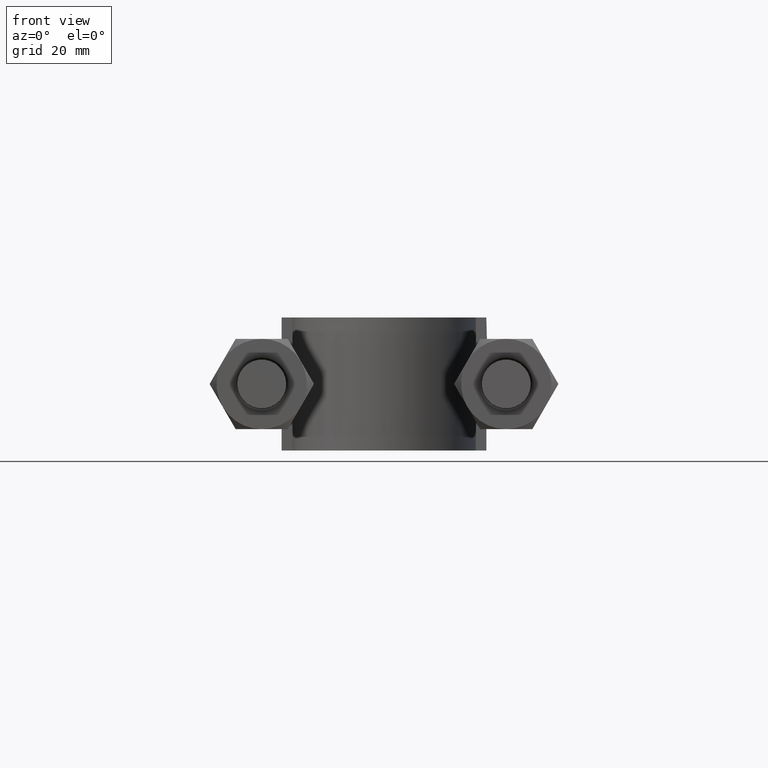
[diagram: clean part render]
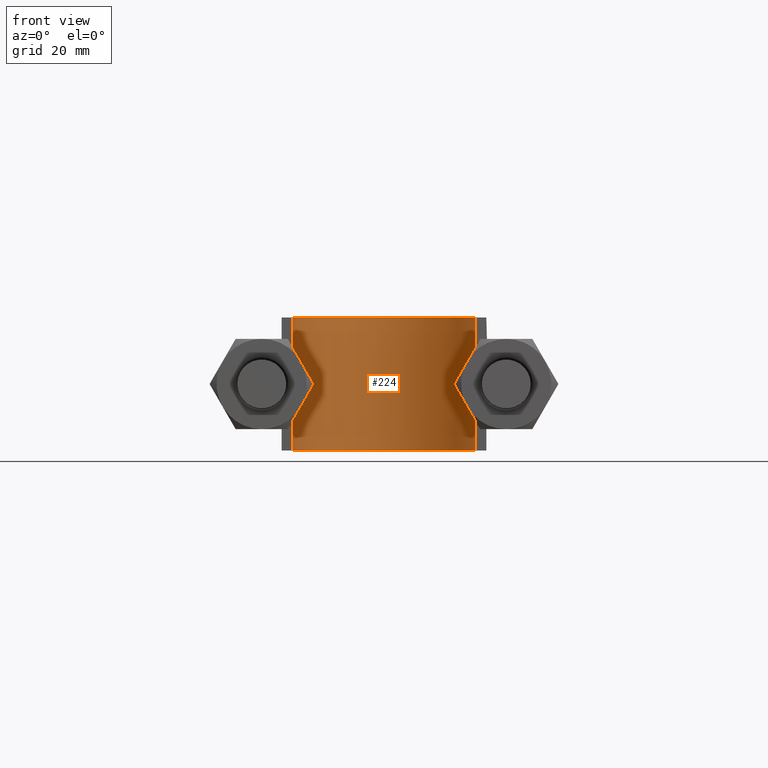
[diagram: same view with one face highlighted and labeled with its STEP entity id]
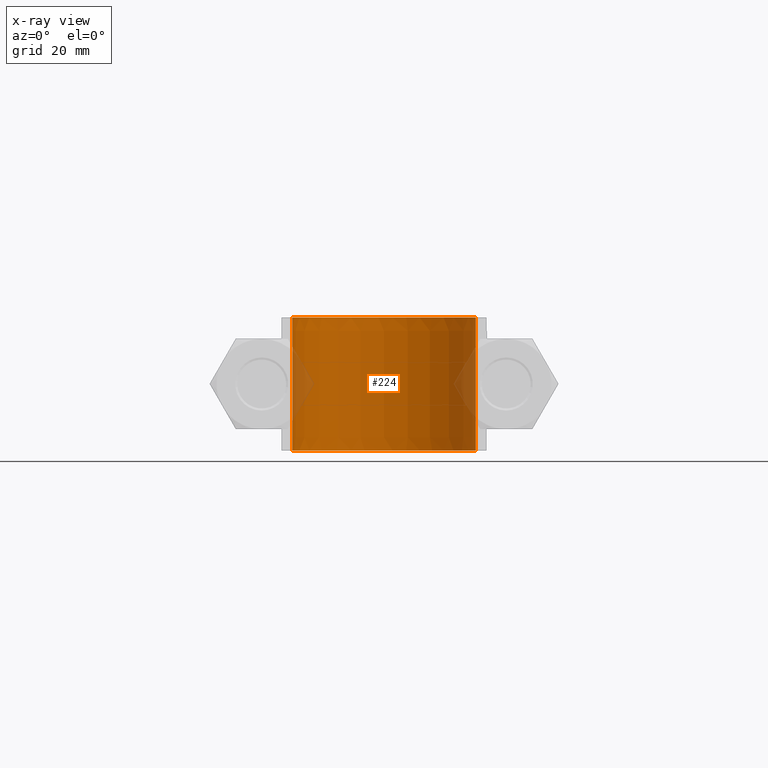
[diagram: x-ray of the same camera — body ghosted, the highlighted face saturated]
A machine part, front view. The second image highlights one B-rep face of the part: STEP entity #224.
The next image is the same camera in x-ray: the body ghosted, the highlighted face saturated — about 7% of this face is hidden behind the body in this view.
In plain terms, the highlighted face is a SurfaceOfExtrusion surface.
Its self-contained STEP definition (entity closure, byte-faithful):
#224 = ADVANCED_FACE( '', ( #308 ), #309, .T. );
#308 = FACE_OUTER_BOUND( '', #1006, .T. );
#309 = SURFACE_OF_LINEAR_EXTRUSION( '', #1007, #1008 );
#1006 = EDGE_LOOP( '', ( #1499, #1500, #1501, #1502 ) );
#1007 = B_SPLINE_CURVE_WITH_KNOTS( '', 3, ( #1503, #1504, #1505, #1506, #1507, #1508, #1509, #1510, #1511, #1512, #1513, #1514, #1515, #1516, #1517, #1518, #1519 ), .UNSPECIFIED., .F., .F., ( 4, 3, 1, 1, 1, 1, 1, 1, 1, 3, 4 ), ( 0.138743455497382, 1.00000000000000, 1.50000000000000, 2.00000000000000, 3.00000000000000, 4.00000000000000, 5.00000000000000, 6.00000000000000, 6.50000000000000, 7.00000000000000, 7.86125654450262 ), .UNSPECIFIED. );
#1008 = VECTOR( '', #1520, 1000.00000000000 );
#1499 = ORIENTED_EDGE( '', *, *, #2008, .F. );
#1500 = ORIENTED_EDGE( '', *, *, #2003, .F. );
#1501 = ORIENTED_EDGE( '', *, *, #2015, .T. );
#1502 = ORIENTED_EDGE( '', *, *, #2011, .T. );
#1503 = CARTESIAN_POINT( '', ( -17.2500000000000, 73.3000000000000, -69.9996733561149 ) );
#1504 = CARTESIAN_POINT( '', ( -17.2500000000000, 78.7833333333333, -69.9996733561149 ) );
#1505 = CARTESIAN_POINT( '', ( -17.2500000000000, 84.2666666666667, -69.9996733561149 ) );
#1506 = CARTESIAN_POINT( '', ( -17.2500000000000, 89.7500000000000, -69.9996733561149 ) );
#1507 = CARTESIAN_POINT( '', ( -17.2500000000000, 91.2426934616576, -69.9996733561149 ) );
#1508 = CARTESIAN_POINT( '', ( -16.8447140772576, 94.2689573264767, -69.9996733561149 ) );
#1509 = CARTESIAN_POINT( '', ( -14.5369669940350, 99.8768798182963, -69.9996733561149 ) );
#1510 = CARTESIAN_POINT( '', ( -9.02779989662052, 105.388295002950, -69.9996733561149 ) );
#1511 = CARTESIAN_POINT( '', ( 1.32019731948932E-014, 107.805852498525, -69.9996733561149 ) );
#1512 = CARTESIAN_POINT( '', ( 9.02779989662054, 105.388295002950, -69.9996733561149 ) );
#1513 = CARTESIAN_POINT( '', ( 14.5369669940350, 99.8768798182963, -69.9996733561149 ) );
#1514 = CARTESIAN_POINT( '', ( 16.8447140772576, 94.2689573264767, -69.9996733561149 ) );
#1515 = CARTESIAN_POINT( '', ( 17.2500000000000, 91.2426934616576, -69.9996733561149 ) );
#1516 = CARTESIAN_POINT( '', ( 17.2500000000000, 89.7500000000000, -69.9996733561149 ) );
#1517 = CARTESIAN_POINT( '', ( 17.2500000000000, 84.2666666666667, -69.9996733561149 ) );
#1518 = CARTESIAN_POINT( '', ( 17.2500000000000, 78.7833333333333, -69.9996733561149 ) );
#1519 = CARTESIAN_POINT( '', ( 17.2500000000000, 73.3000000000000, -69.9996733561149 ) );
#1520 = DIRECTION( '', ( 0.000000000000000, 0.000000000000000, 1.00000000000000 ) );
#2003 = EDGE_CURVE( '', #2155, #2156, #2157, .T. );
#2008 = EDGE_CURVE( '', #2156, #2165, #2166, .T. );
#2011 = EDGE_CURVE( '', #2170, #2165, #2171, .T. );
#2015 = EDGE_CURVE( '', #2155, #2170, #2177, .T. );
#2155 = VERTEX_POINT( '', #2405 );
#2156 = VERTEX_POINT( '', #2406 );
#2157 = LINE( '', #2407, #2408 );
#2165 = VERTEX_POINT( '', #2457 );
#2166 = B_SPLINE_CURVE_WITH_KNOTS( '', 3, ( #2458, #2459, #2460, #2461, #2462, #2463, #2464, #2465, #2466, #2467, #2468, #2469, #2470, #2471, #2472, #2473, #2474 ), .UNSPECIFIED., .F., .F., ( 4, 3, 1, 1, 1, 1, 1, 1, 1, 3, 4 ), ( 0.138743455497382, 1.00000000000000, 1.50000000000000, 2.00000000000000, 3.00000000000000, 4.00000000000000, 5.00000000000000, 6.00000000000000, 6.50000000000000, 7.00000000000000, 7.86125654450262 ), .UNSPECIFIED. );
#2170 = VERTEX_POINT( '', #2495 );
#2171 = LINE( '', #2496, #2497 );
#2177 = B_SPLINE_CURVE_WITH_KNOTS( '', 3, ( #2543, #2544, #2545, #2546, #2547, #2548, #2549, #2550, #2551, #2552, #2553, #2554, #2555, #2556, #2557, #2558, #2559 ), .UNSPECIFIED., .F., .F., ( 4, 3, 1, 1, 1, 1, 1, 1, 1, 3, 4 ), ( 0.138743455497382, 1.00000000000000, 1.50000000000000, 2.00000000000000, 3.00000000000000, 4.00000000000000, 5.00000000000000, 6.00000000000000, 6.50000000000000, 7.00000000000000, 7.86125654450262 ), .UNSPECIFIED. );
#2405 = CARTESIAN_POINT( '', ( -17.2500000000000, 73.3000000000000, -12.5000000000000 ) );
#2406 = CARTESIAN_POINT( '', ( -17.2500000000000, 73.3000000000000, 12.5000000000000 ) );
#2407 = CARTESIAN_POINT( '', ( -17.2500000000000, 73.3000000000000, -69.9996733561149 ) );
#2408 = VECTOR( '', #3001, 1000.00000000000 );
#2457 = CARTESIAN_POINT( '', ( 17.2500000000000, 73.3000000000000, 12.5000000000000 ) );
#2458 = CARTESIAN_POINT( '', ( -17.2500000000000, 73.3000000000000, 12.5000000000000 ) );
#2459 = CARTESIAN_POINT( '', ( -17.2500000000000, 78.7833333333333, 12.5000000000000 ) );
#2460 = CARTESIAN_POINT( '', ( -17.2500000000000, 84.2666666666667, 12.5000000000000 ) );
#2461 = CARTESIAN_POINT( '', ( -17.2500000000000, 89.7500000000000, 12.5000000000000 ) );
#2462 = CARTESIAN_POINT( '', ( -17.2500000000000, 91.2426934616576, 12.5000000000000 ) );
#2463 = CARTESIAN_POINT( '', ( -16.8447140772576, 94.2689573264767, 12.5000000000000 ) );
#2464 = CARTESIAN_POINT( '', ( -14.5369669940350, 99.8768798182963, 12.5000000000000 ) );
#2465 = CARTESIAN_POINT( '', ( -9.02779989662052, 105.388295002950, 12.5000000000000 ) );
#2466 = CARTESIAN_POINT( '', ( 1.32019731948932E-014, 107.805852498525, 12.5000000000000 ) );
#2467 = CARTESIAN_POINT( '', ( 9.02779989662054, 105.388295002950, 12.5000000000000 ) );
#2468 = CARTESIAN_POINT( '', ( 14.5369669940350, 99.8768798182963, 12.5000000000000 ) );
#2469 = CARTESIAN_POINT( '', ( 16.8447140772576, 94.2689573264767, 12.5000000000000 ) );
#2470 = CARTESIAN_POINT( '', ( 17.2500000000000, 91.2426934616576, 12.5000000000000 ) );
#2471 = CARTESIAN_POINT( '', ( 17.2500000000000, 89.7500000000000, 12.5000000000000 ) );
#2472 = CARTESIAN_POINT( '', ( 17.2500000000000, 84.2666666666667, 12.5000000000000 ) );
#2473 = CARTESIAN_POINT( '', ( 17.2500000000000, 78.7833333333333, 12.5000000000000 ) );
#2474 = CARTESIAN_POINT( '', ( 17.2500000000000, 73.3000000000000, 12.5000000000000 ) );
#2495 = CARTESIAN_POINT( '', ( 17.2500000000000, 73.3000000000000, -12.5000000000000 ) );
#2496 = CARTESIAN_POINT( '', ( 17.2500000000000, 73.3000000000000, -69.9996733561149 ) );
#2497 = VECTOR( '', #3005, 1000.00000000000 );
#2543 = CARTESIAN_POINT( '', ( -17.2500000000000, 73.3000000000000, -12.5000000000000 ) );
#2544 = CARTESIAN_POINT( '', ( -17.2500000000000, 78.7833333333333, -12.5000000000000 ) );
#2545 = CARTESIAN_POINT( '', ( -17.2500000000000, 84.2666666666667, -12.5000000000000 ) );
#2546 = CARTESIAN_POINT( '', ( -17.2500000000000, 89.7500000000000, -12.5000000000000 ) );
#2547 = CARTESIAN_POINT( '', ( -17.2500000000000, 91.2426934616576, -12.5000000000000 ) );
#2548 = CARTESIAN_POINT( '', ( -16.8447140772576, 94.2689573264767, -12.5000000000000 ) );
#2549 = CARTESIAN_POINT( '', ( -14.5369669940350, 99.8768798182963, -12.5000000000000 ) );
#2550 = CARTESIAN_POINT( '', ( -9.02779989662052, 105.388295002950, -12.5000000000000 ) );
#2551 = CARTESIAN_POINT( '', ( 1.32019731948932E-014, 107.805852498525, -12.5000000000000 ) );
#2552 = CARTESIAN_POINT( '', ( 9.02779989662054, 105.388295002950, -12.5000000000000 ) );
#2553 = CARTESIAN_POINT( '', ( 14.5369669940350, 99.8768798182963, -12.5000000000000 ) );
#2554 = CARTESIAN_POINT( '', ( 16.8447140772576, 94.2689573264767, -12.5000000000000 ) );
#2555 = CARTESIAN_POINT( '', ( 17.2500000000000, 91.2426934616576, -12.5000000000000 ) );
#2556 = CARTESIAN_POINT( '', ( 17.2500000000000, 89.7500000000000, -12.5000000000000 ) );
#2557 = CARTESIAN_POINT( '', ( 17.2500000000000, 84.2666666666667, -12.5000000000000 ) );
#2558 = CARTESIAN_POINT( '', ( 17.2500000000000, 78.7833333333333, -12.5000000000000 ) );
#2559 = CARTESIAN_POINT( '', ( 17.2500000000000, 73.3000000000000, -12.5000000000000 ) );
#3001 = DIRECTION( '', ( 0.000000000000000, 0.000000000000000, 1.00000000000000 ) );
#3005 = DIRECTION( '', ( 0.000000000000000, 0.000000000000000, 1.00000000000000 ) );